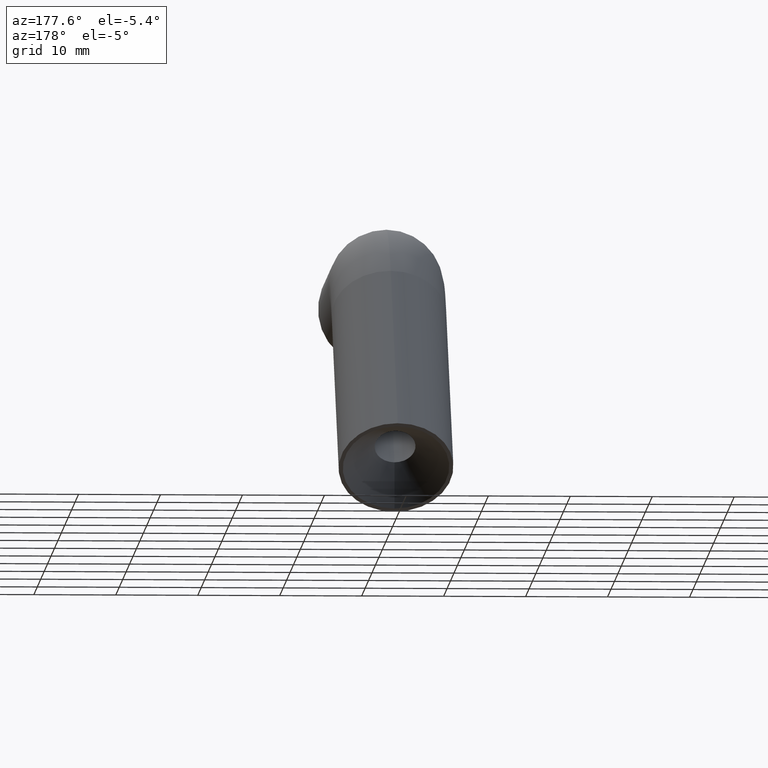
[diagram: clean part render]
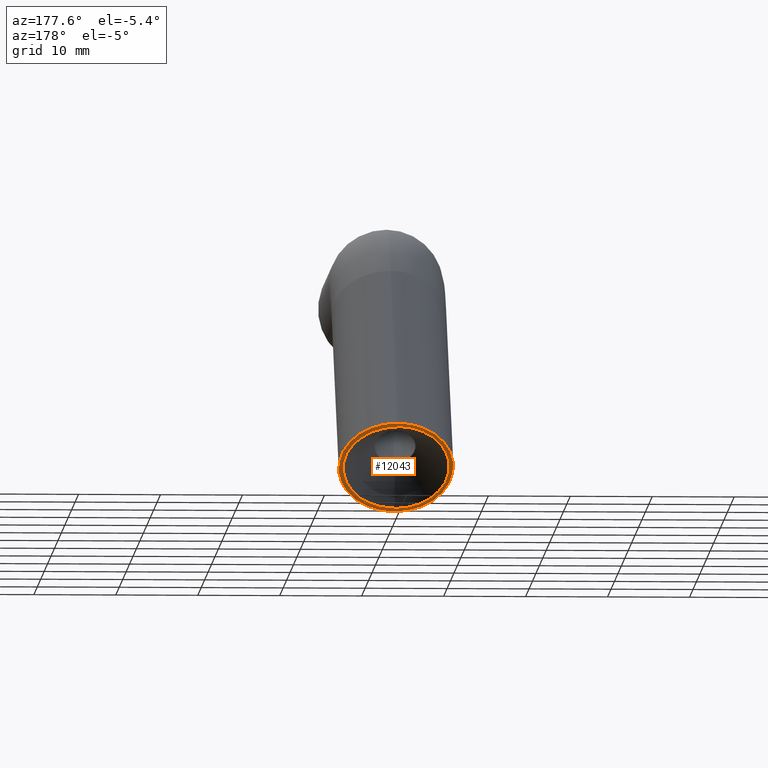
[diagram: same view with one face highlighted and labeled with its STEP entity id]
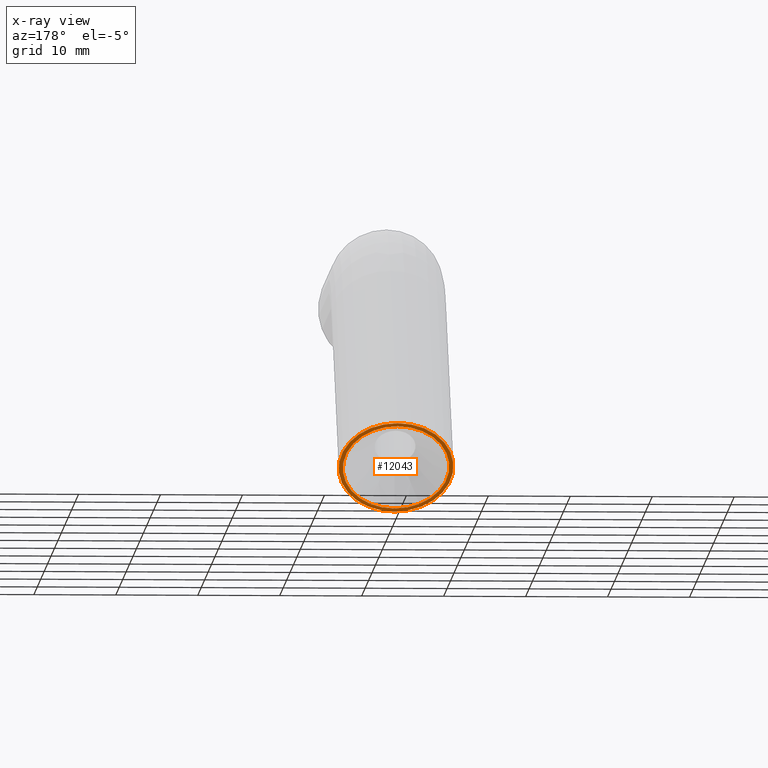
[diagram: x-ray of the same camera — body ghosted, the highlighted face saturated]
A machine part, auxiliary view. The second image highlights one B-rep face of the part: STEP entity #12043.
The next image is the same camera in x-ray: the body ghosted, the highlighted face saturated — about 0% of this face is hidden behind the body in this view.
In plain terms, the highlighted planar face has unit normal (0, 0.7071, -0.7071).
Its self-contained STEP definition (entity closure, byte-faithful):
#226 = CARTESIAN_POINT ( 'NONE',  ( 0.0000000000000000000, 60.00000000000000000, -24.99999999999999300 ) ) ;
#435 = CARTESIAN_POINT ( 'NONE',  ( 0.0000000000000000000, 60.00000000000001400, -25.00000000000000000 ) ) ;
#506 = CIRCLE ( 'NONE', #548, 6.500000000000004400 ) ;
#548 = AXIS2_PLACEMENT_3D ( 'NONE', #9367, #1996, #13392 ) ;
#890 = CARTESIAN_POINT ( 'NONE',  ( 8.572527594031473200E-016, 55.05025253169416300, -29.94974746830581900 ) ) ;
#1141 = ORIENTED_EDGE ( 'NONE', *, *, #2020, .F. ) ;
#1658 = DIRECTION ( 'NONE',  ( 0.0000000000000000000, 0.7071067811865487900, 0.7071067811865463500 ) ) ;
#1996 = DIRECTION ( 'NONE',  ( -0.0000000000000000000, 0.7071067811865464600, -0.7071067811865486800 ) ) ;
#2020 = EDGE_CURVE ( 'NONE', #9763, #4040, #11851, .T. ) ;
#3047 = EDGE_CURVE ( 'NONE', #4040, #9763, #506, .T. ) ;
#3474 = DIRECTION ( 'NONE',  ( 0.0000000000000000000, 0.7071067811865487900, 0.7071067811865463500 ) ) ;
#3650 = PLANE ( 'NONE',  #5857 ) ;
#3683 = AXIS2_PLACEMENT_3D ( 'NONE', #435, #5629, #8764 ) ;
#3743 = CIRCLE ( 'NONE', #12842, 7.000000000000001800 ) ;
#4040 = VERTEX_POINT ( 'NONE', #9583 ) ;
#4091 = AXIS2_PLACEMENT_3D ( 'NONE', #4552, #9716, #3474 ) ;
#4250 = CARTESIAN_POINT ( 'NONE',  ( 7.960204194457793500E-016, 55.40380592228744700, -29.59619407771255000 ) ) ;
#4284 = FACE_BOUND ( 'NONE', #10178, .T. ) ;
#4552 = CARTESIAN_POINT ( 'NONE',  ( 0.0000000000000000000, 60.00000000000000000, -24.99999999999999300 ) ) ;
#4952 = CIRCLE ( 'NONE', #4091, 7.000000000000001800 ) ;
#5629 = DIRECTION ( 'NONE',  ( -0.0000000000000000000, 0.7071067811865464600, -0.7071067811865486800 ) ) ;
#5782 = VERTEX_POINT ( 'NONE', #7048 ) ;
#5857 = AXIS2_PLACEMENT_3D ( 'NONE', #12942, #11067, #1658 ) ;
#6607 = ORIENTED_EDGE ( 'NONE', *, *, #7377, .T. ) ;
#7048 = CARTESIAN_POINT ( 'NONE',  ( 0.0000000000000000000, 64.94974746830584400, -20.05025253169417400 ) ) ;
#7377 = EDGE_CURVE ( 'NONE', #5782, #9263, #3743, .T. ) ;
#7588 = DIRECTION ( 'NONE',  ( 0.0000000000000000000, 0.7071067811865463500, -0.7071067811865487900 ) ) ;
#8764 = DIRECTION ( 'NONE',  ( 0.0000000000000000000, 0.7071067811865487900, 0.7071067811865462400 ) ) ;
#8854 = FACE_OUTER_BOUND ( 'NONE', #9932, .T. ) ;
#9176 = ORIENTED_EDGE ( 'NONE', *, *, #3047, .F. ) ;
#9263 = VERTEX_POINT ( 'NONE', #890 ) ;
#9367 = CARTESIAN_POINT ( 'NONE',  ( 0.0000000000000000000, 60.00000000000001400, -25.00000000000000000 ) ) ;
#9583 = CARTESIAN_POINT ( 'NONE',  ( 0.0000000000000000000, 64.59619407771258200, -20.40380592228744700 ) ) ;
#9716 = DIRECTION ( 'NONE',  ( 0.0000000000000000000, 0.7071067811865463500, -0.7071067811865487900 ) ) ;
#9763 = VERTEX_POINT ( 'NONE', #4250 ) ;
#9932 = EDGE_LOOP ( 'NONE', ( #6607, #13289 ) ) ;
#10178 = EDGE_LOOP ( 'NONE', ( #9176, #1141 ) ) ;
#11067 = DIRECTION ( 'NONE',  ( 0.0000000000000000000, 0.7071067811865463500, -0.7071067811865487900 ) ) ;
#11851 = CIRCLE ( 'NONE', #3683, 6.500000000000004400 ) ;
#11938 = EDGE_CURVE ( 'NONE', #9263, #5782, #4952, .T. ) ;
#12043 = ADVANCED_FACE ( 'NONE', ( #4284, #8854 ), #3650, .T. ) ;
#12607 = DIRECTION ( 'NONE',  ( 0.0000000000000000000, 0.7071067811865487900, 0.7071067811865463500 ) ) ;
#12842 = AXIS2_PLACEMENT_3D ( 'NONE', #226, #7588, #12607 ) ;
#12942 = CARTESIAN_POINT ( 'NONE',  ( 0.0000000000000000000, 60.00000000000000000, -24.99999999999999300 ) ) ;
#13289 = ORIENTED_EDGE ( 'NONE', *, *, #11938, .T. ) ;
#13392 = DIRECTION ( 'NONE',  ( 0.0000000000000000000, 0.7071067811865487900, 0.7071067811865462400 ) ) ;